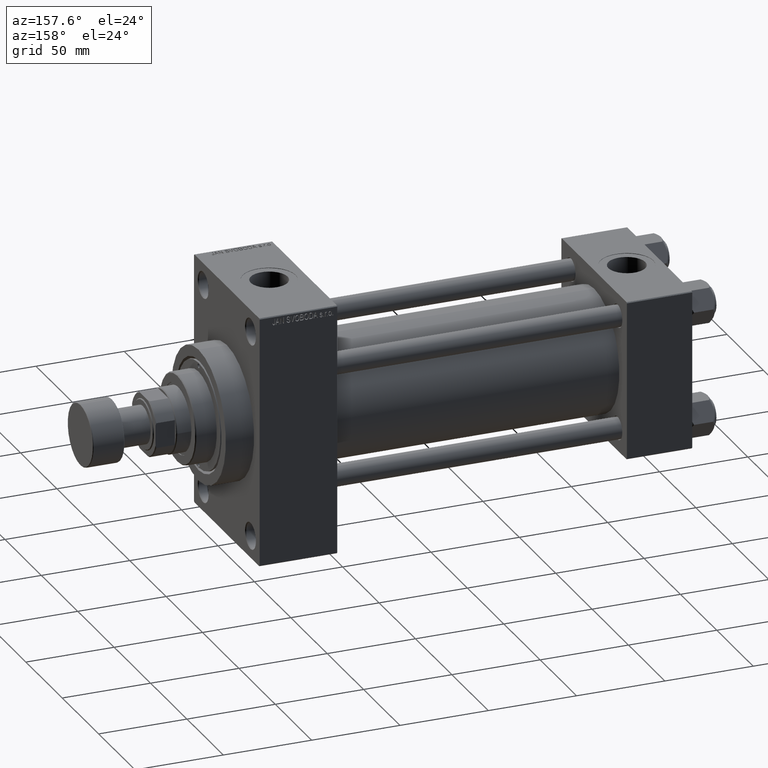
[diagram: clean part render]
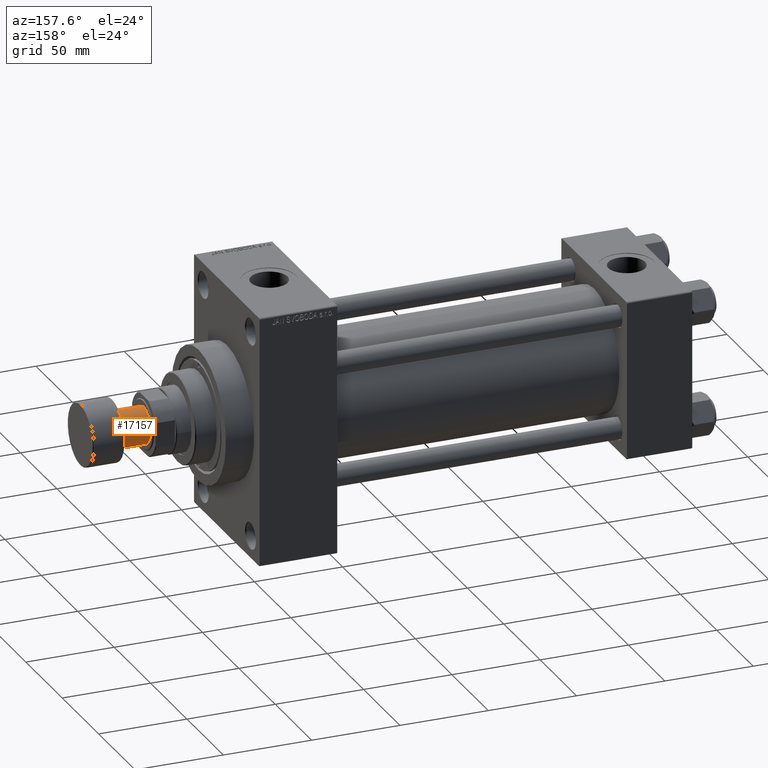
[diagram: same view with one face highlighted and labeled with its STEP entity id]
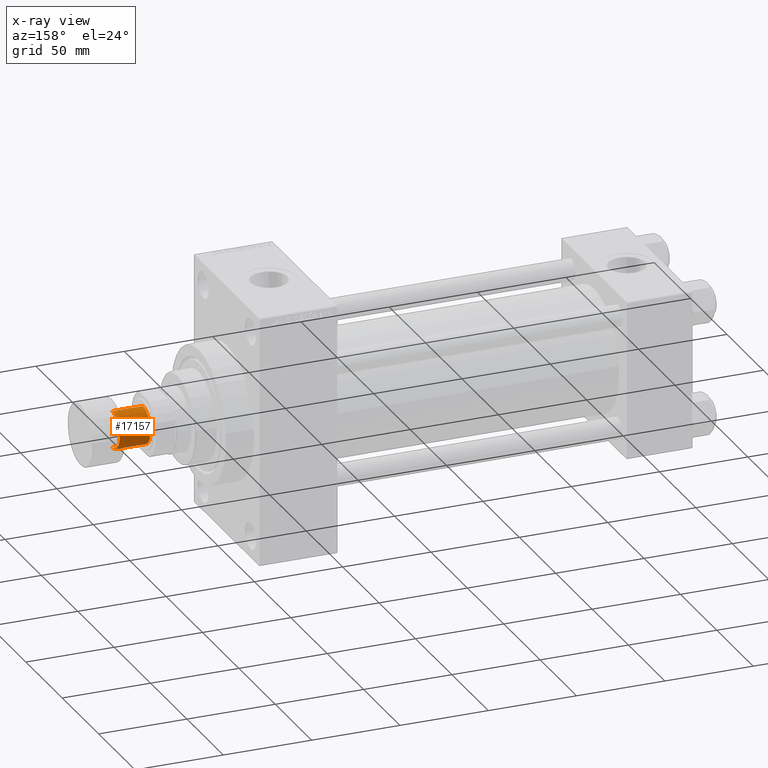
[diagram: x-ray of the same camera — body ghosted, the highlighted face saturated]
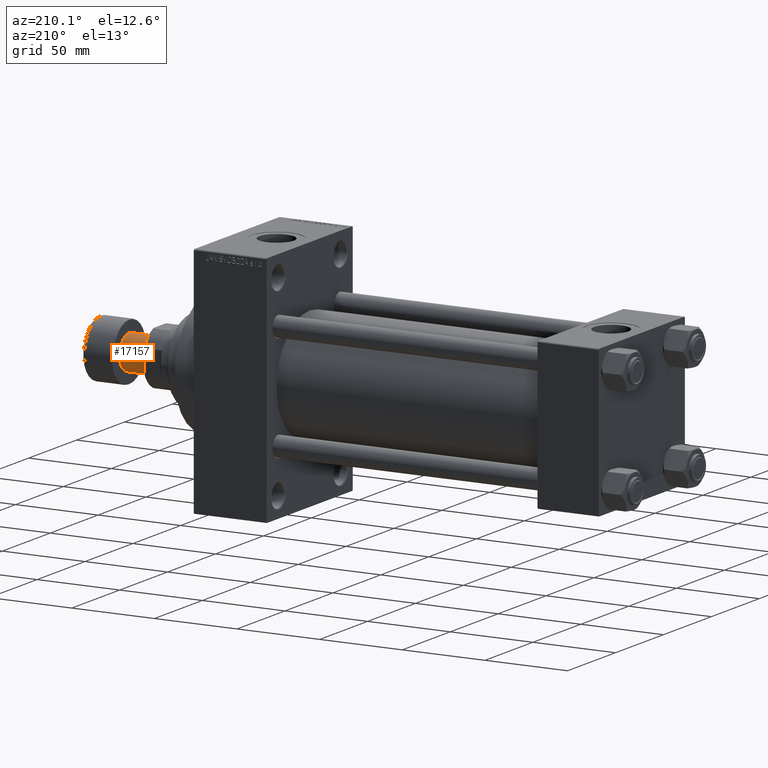
[diagram: same view with one face highlighted and labeled with its STEP entity id]
A machine part, auxiliary view. The second image highlights one B-rep face of the part: STEP entity #17157.
The next image is the same camera in x-ray: the body ghosted, the highlighted face saturated — about 0% of this face is hidden behind the body in this view.
A second angle (auxiliary view) of the same face is appended — the face is thin or edge-on in the first view.
In plain terms, the highlighted cylindrical surface (edge-blend (fillet) strip) has radius 10.5 mm, axis along (1, 0, 0).
Its self-contained STEP definition (entity closure, byte-faithful):
#1144 = LINE ( 'NONE', #20036, #21277 ) ;
#1331 = DIRECTION ( 'NONE',  ( -1.000000000000000000, 0.000000000000000000, 0.000000000000000000 ) ) ;
#2912 = EDGE_CURVE ( 'NONE', #37352, #31333, #2952, .T. ) ;
#2952 = CIRCLE ( 'NONE', #9127, 10.50000000000000000 ) ;
#4955 = CARTESIAN_POINT ( 'NONE',  ( 0.000000000000000000, 0.000000000000000000, -18.00000000000000000 ) ) ;
#5194 = DIRECTION ( 'NONE',  ( -0.000000000000000000, -0.000000000000000000, 1.000000000000000000 ) ) ;
#5677 = CARTESIAN_POINT ( 'NONE',  ( -10.50000000000000000, 1.285879139104720831E-15, -18.00000000000000000 ) ) ;
#7213 = CARTESIAN_POINT ( 'NONE',  ( 0.000000000000000000, 0.000000000000000000, -35.50000000000000711 ) ) ;
#8926 = LINE ( 'NONE', #27814, #44369 ) ;
#9127 = AXIS2_PLACEMENT_3D ( 'NONE', #7213, #33344, #44007 ) ;
#9327 = CYLINDRICAL_SURFACE ( 'NONE', #16203, 10.50000000000000000 ) ;
#13774 = DIRECTION ( 'NONE',  ( -0.000000000000000000, -0.000000000000000000, 1.000000000000000000 ) ) ;
#14301 = ORIENTED_EDGE ( 'NONE', *, *, #46375, .T. ) ;
#15940 = DIRECTION ( 'NONE',  ( -0.000000000000000000, -0.000000000000000000, 1.000000000000000000 ) ) ;
#16203 = AXIS2_PLACEMENT_3D ( 'NONE', #16854, #5194, #42745 ) ;
#16368 = FACE_OUTER_BOUND ( 'NONE', #18362, .T. ) ;
#16854 = CARTESIAN_POINT ( 'NONE',  ( 0.000000000000000000, 0.000000000000000000, -35.50000000000000711 ) ) ;
#17049 = CIRCLE ( 'NONE', #38686, 10.50000000000000000 ) ;
#17157 = ADVANCED_FACE ( 'NONE', ( #16368 ), #9327, .T. ) ;
#17481 = ORIENTED_EDGE ( 'NONE', *, *, #22217, .T. ) ;
#18362 = EDGE_LOOP ( 'NONE', ( #35358, #14301, #17481, #47213 ) ) ;
#20036 = CARTESIAN_POINT ( 'NONE',  ( 10.50000000000000000, 0.000000000000000000, -35.50000000000000711 ) ) ;
#21277 = VECTOR ( 'NONE', #15940, 1000.000000000000000 ) ;
#22217 = EDGE_CURVE ( 'NONE', #30385, #44801, #17049, .T. ) ;
#27814 = CARTESIAN_POINT ( 'NONE',  ( -10.50000000000000000, 1.285879139104720831E-15, -35.50000000000000711 ) ) ;
#30385 = VERTEX_POINT ( 'NONE', #5677 ) ;
#31333 = VERTEX_POINT ( 'NONE', #45010 ) ;
#33344 = DIRECTION ( 'NONE',  ( 0.000000000000000000, 0.000000000000000000, -1.000000000000000000 ) ) ;
#35358 = ORIENTED_EDGE ( 'NONE', *, *, #2912, .F. ) ;
#36057 = CARTESIAN_POINT ( 'NONE',  ( 10.50000000000000000, 0.000000000000000000, -18.00000000000000000 ) ) ;
#36411 = EDGE_CURVE ( 'NONE', #31333, #44801, #1144, .T. ) ;
#37073 = CARTESIAN_POINT ( 'NONE',  ( -10.50000000000000000, 1.285879139104720831E-15, -35.50000000000000711 ) ) ;
#37352 = VERTEX_POINT ( 'NONE', #37073 ) ;
#38686 = AXIS2_PLACEMENT_3D ( 'NONE', #4955, #45884, #1331 ) ;
#42745 = DIRECTION ( 'NONE',  ( 1.000000000000000000, 0.000000000000000000, 0.000000000000000000 ) ) ;
#44007 = DIRECTION ( 'NONE',  ( -1.000000000000000000, 0.000000000000000000, 0.000000000000000000 ) ) ;
#44369 = VECTOR ( 'NONE', #13774, 1000.000000000000000 ) ;
#44801 = VERTEX_POINT ( 'NONE', #36057 ) ;
#45010 = CARTESIAN_POINT ( 'NONE',  ( 10.50000000000000000, 0.000000000000000000, -35.50000000000000711 ) ) ;
#45884 = DIRECTION ( 'NONE',  ( 0.000000000000000000, 0.000000000000000000, -1.000000000000000000 ) ) ;
#46375 = EDGE_CURVE ( 'NONE', #37352, #30385, #8926, .T. ) ;
#47213 = ORIENTED_EDGE ( 'NONE', *, *, #36411, .F. ) ;